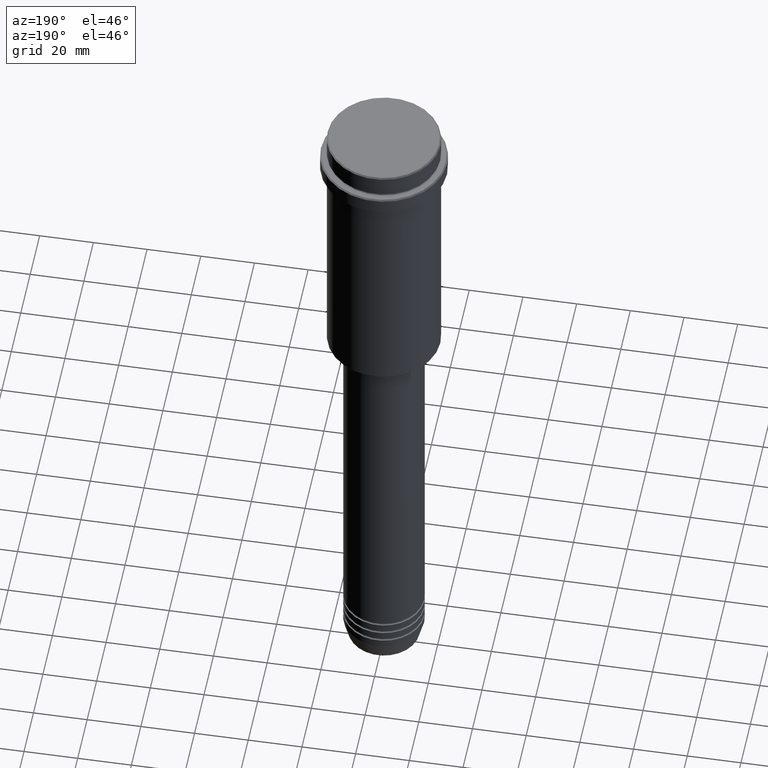
[diagram: clean part render]
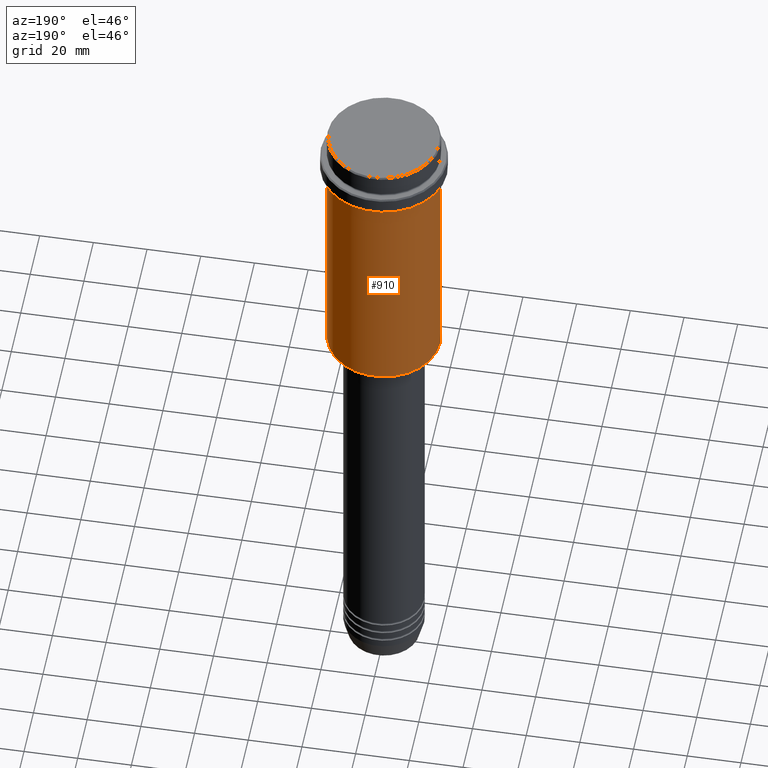
[diagram: same view with one face highlighted and labeled with its STEP entity id]
A machine part, auxiliary view. The second image highlights one B-rep face of the part: STEP entity #910.
In plain terms, the highlighted cylindrical surface (partial cylindrical patch) has radius 21 mm, axis along (-0, -0, 1).
Its self-contained STEP definition (entity closure, byte-faithful):
#14 = FACE_OUTER_BOUND ( 'NONE', #692, .T. ) ;
#27 = VECTOR ( 'NONE', #1167, 1000.000000000000000 ) ;
#49 = VERTEX_POINT ( 'NONE', #63 ) ;
#63 = CARTESIAN_POINT ( 'NONE',  ( 21.00000000000000000, 0.000000000000000000, -16.00000000000000355 ) ) ;
#96 = CARTESIAN_POINT ( 'NONE',  ( 0.000000000000000000, 0.000000000000000000, 0.000000000000000000 ) ) ;
#187 = ORIENTED_EDGE ( 'NONE', *, *, #1285, .T. ) ;
#216 = LINE ( 'NONE', #1100, #961 ) ;
#281 = LINE ( 'NONE', #291, #27 ) ;
#291 = CARTESIAN_POINT ( 'NONE',  ( 21.00000000000000000, 0.000000000000000000, 0.000000000000000000 ) ) ;
#305 = DIRECTION ( 'NONE',  ( -0.000000000000000000, -0.000000000000000000, 1.000000000000000000 ) ) ;
#317 = CYLINDRICAL_SURFACE ( 'NONE', #550, 21.00000000000000000 ) ;
#346 = CARTESIAN_POINT ( 'NONE',  ( 0.000000000000000000, 0.000000000000000000, -16.00000000000000355 ) ) ;
#434 = DIRECTION ( 'NONE',  ( 1.000000000000000000, 0.000000000000000000, 0.000000000000000000 ) ) ;
#513 = CARTESIAN_POINT ( 'NONE',  ( 21.00000000000000000, 0.000000000000000000, -104.4999999999999289 ) ) ;
#528 = CARTESIAN_POINT ( 'NONE',  ( -21.00000000000000000, 2.571758278209441661E-15, -104.4999999999999289 ) ) ;
#550 = AXIS2_PLACEMENT_3D ( 'NONE', #96, #305, #434 ) ;
#661 = DIRECTION ( 'NONE',  ( -0.000000000000000000, -0.000000000000000000, 1.000000000000000000 ) ) ;
#675 = DIRECTION ( 'NONE',  ( 1.000000000000000000, 0.000000000000000000, 0.000000000000000000 ) ) ;
#692 = EDGE_LOOP ( 'NONE', ( #187, #1209, #709, #807 ) ) ;
#709 = ORIENTED_EDGE ( 'NONE', *, *, #1038, .F. ) ;
#718 = VERTEX_POINT ( 'NONE', #513 ) ;
#757 = VERTEX_POINT ( 'NONE', #1152 ) ;
#807 = ORIENTED_EDGE ( 'NONE', *, *, #1154, .F. ) ;
#852 = VERTEX_POINT ( 'NONE', #528 ) ;
#884 = DIRECTION ( 'NONE',  ( -0.000000000000000000, -0.000000000000000000, 1.000000000000000000 ) ) ;
#910 = ADVANCED_FACE ( 'NONE', ( #14 ), #317, .T. ) ;
#961 = VECTOR ( 'NONE', #884, 1000.000000000000000 ) ;
#965 = EDGE_CURVE ( 'NONE', #852, #757, #216, .T. ) ;
#994 = CARTESIAN_POINT ( 'NONE',  ( 0.000000000000000000, 0.000000000000000000, -104.4999999999999289 ) ) ;
#1013 = AXIS2_PLACEMENT_3D ( 'NONE', #994, #661, #1106 ) ;
#1035 = CIRCLE ( 'NONE', #1013, 21.00000000000000000 ) ;
#1038 = EDGE_CURVE ( 'NONE', #49, #757, #1144, .T. ) ;
#1100 = CARTESIAN_POINT ( 'NONE',  ( -21.00000000000000000, 2.571758278209441661E-15, 0.000000000000000000 ) ) ;
#1106 = DIRECTION ( 'NONE',  ( -1.000000000000000000, 0.000000000000000000, 0.000000000000000000 ) ) ;
#1144 = CIRCLE ( 'NONE', #1326, 21.00000000000000000 ) ;
#1152 = CARTESIAN_POINT ( 'NONE',  ( -21.00000000000000000, 2.571758278209441661E-15, -16.00000000000000355 ) ) ;
#1154 = EDGE_CURVE ( 'NONE', #718, #49, #281, .T. ) ;
#1167 = DIRECTION ( 'NONE',  ( -0.000000000000000000, -0.000000000000000000, 1.000000000000000000 ) ) ;
#1209 = ORIENTED_EDGE ( 'NONE', *, *, #965, .T. ) ;
#1285 = EDGE_CURVE ( 'NONE', #718, #852, #1035, .T. ) ;
#1326 = AXIS2_PLACEMENT_3D ( 'NONE', #346, #1338, #675 ) ;
#1338 = DIRECTION ( 'NONE',  ( -0.000000000000000000, -0.000000000000000000, 1.000000000000000000 ) ) ;